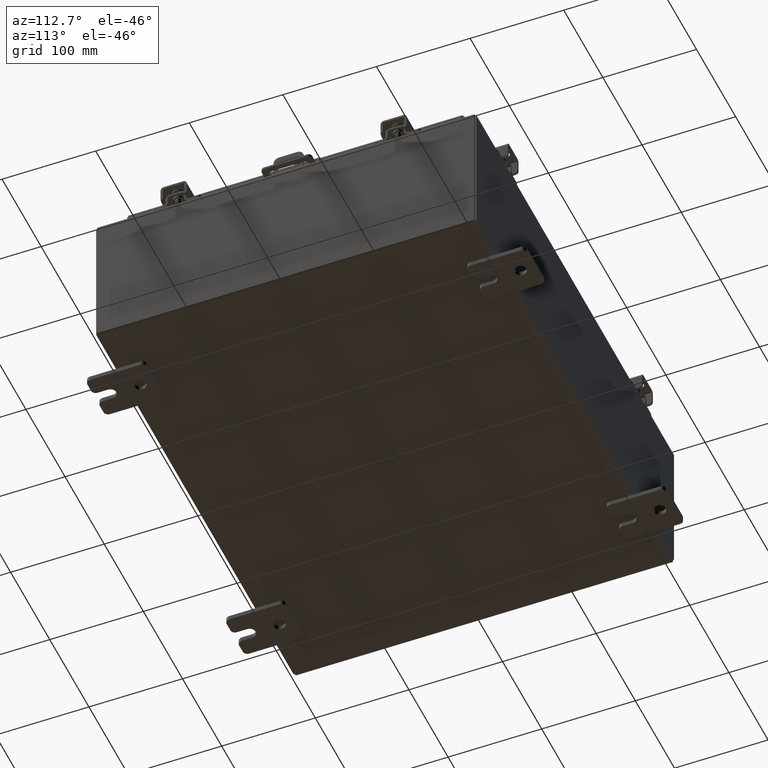
[diagram: clean part render]
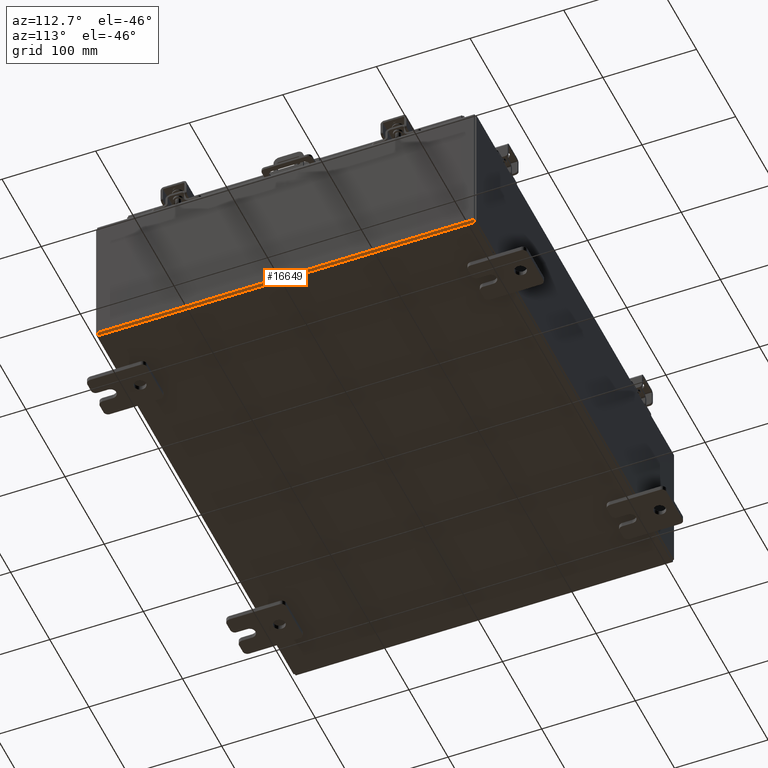
[diagram: same view with one face highlighted and labeled with its STEP entity id]
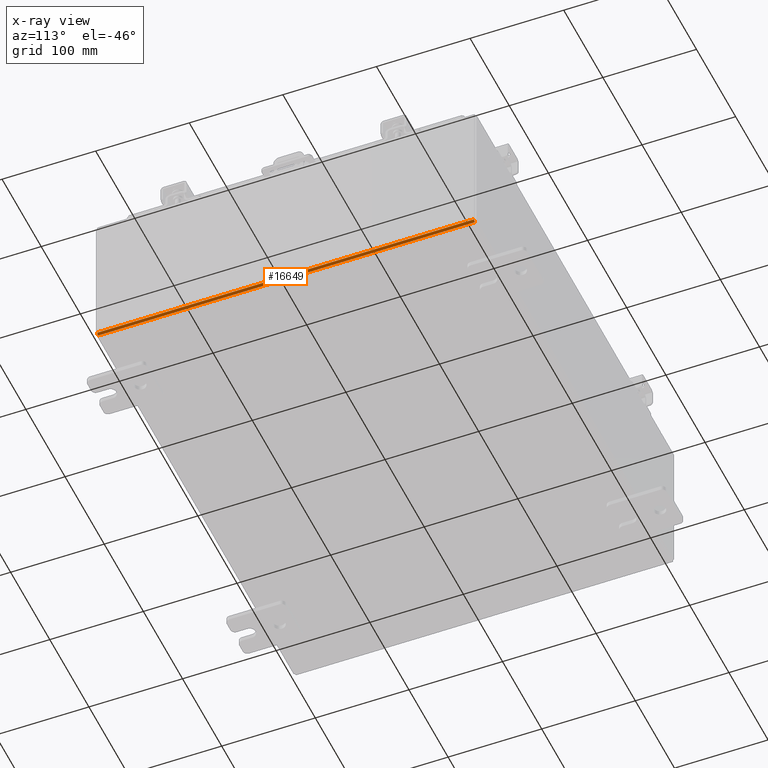
[diagram: x-ray of the same camera — body ghosted, the highlighted face saturated]
A machine part, auxiliary view. The second image highlights one B-rep face of the part: STEP entity #16649.
The next image is the same camera in x-ray: the body ghosted, the highlighted face saturated — about 0% of this face is hidden behind the body in this view.
In plain terms, the highlighted cylindrical surface (edge-blend (fillet) strip) has radius 2.2276 mm, axis along (0, 1, 0).
Its self-contained STEP definition (entity closure, byte-faithful):
#72 = EDGE_CURVE ( 'NONE', #6173, #16083, #7836, .T. ) ;
#321 = VECTOR ( 'NONE', #3567, 39.37007874015748100 ) ;
#1035 = LINE ( 'NONE', #3840, #321 ) ;
#1183 = FACE_OUTER_BOUND ( 'NONE', #15271, .T. ) ;
#3551 = CARTESIAN_POINT ( 'NONE',  ( 10.00000000000000000, -7.925300000000000000, 0.01299999999999985900 ) ) ;
#3567 = DIRECTION ( 'NONE',  ( -0.0000000000000000000, -1.000000000000000000, -0.0000000000000000000 ) ) ;
#3840 = CARTESIAN_POINT ( 'NONE',  ( 10.00000000000000000, -7.925300000000000000, 0.01299999999999986400 ) ) ;
#3893 = EDGE_CURVE ( 'NONE', #18187, #21002, #8009, .T. ) ;
#4420 = ORIENTED_EDGE ( 'NONE', *, *, #3893, .F. ) ;
#4553 = ORIENTED_EDGE ( 'NONE', *, *, #72, .F. ) ;
#4918 = DIRECTION ( 'NONE',  ( 1.000000000000000000, 0.0000000000000000000, -3.309679011708404900E-015 ) ) ;
#5137 = AXIS2_PLACEMENT_3D ( 'NONE', #8687, #26166, #20633 ) ;
#5310 = EDGE_CURVE ( 'NONE', #18187, #16083, #1035, .T. ) ;
#6173 = VERTEX_POINT ( 'NONE', #13592 ) ;
#7836 = CIRCLE ( 'NONE', #5137, 0.08770000000000009700 ) ;
#7947 = DIRECTION ( 'NONE',  ( 0.0000000000000000000, 1.000000000000000000, 0.0000000000000000000 ) ) ;
#8009 = CIRCLE ( 'NONE', #11431, 0.08770000000000009700 ) ;
#8651 = VECTOR ( 'NONE', #23348, 39.37007874015748100 ) ;
#8687 = CARTESIAN_POINT ( 'NONE',  ( 9.912300000000000100, -7.925300000000000000, 0.01300000000000015000 ) ) ;
#9651 = CARTESIAN_POINT ( 'NONE',  ( 9.912300000000000100, 7.925300000000000000, 0.01300000000000015000 ) ) ;
#10480 = EDGE_CURVE ( 'NONE', #21002, #6173, #14737, .T. ) ;
#11001 = ORIENTED_EDGE ( 'NONE', *, *, #10480, .F. ) ;
#11431 = AXIS2_PLACEMENT_3D ( 'NONE', #24057, #23976, #23943 ) ;
#13592 = CARTESIAN_POINT ( 'NONE',  ( 9.912300000000000100, -7.925300000000000000, -0.07470000000000000300 ) ) ;
#14737 = LINE ( 'NONE', #25618, #8651 ) ;
#15271 = EDGE_LOOP ( 'NONE', ( #11001, #4420, #18926, #4553 ) ) ;
#16083 = VERTEX_POINT ( 'NONE', #3551 ) ;
#16261 = CARTESIAN_POINT ( 'NONE',  ( 9.912300000000000100, 7.925300000000000000, -0.07469999999999994700 ) ) ;
#16649 = ADVANCED_FACE ( 'NONE', ( #1183 ), #25583, .T. ) ;
#18187 = VERTEX_POINT ( 'NONE', #18871 ) ;
#18535 = AXIS2_PLACEMENT_3D ( 'NONE', #9651, #7947, #4918 ) ;
#18871 = CARTESIAN_POINT ( 'NONE',  ( 10.00000000000000000, 7.925300000000000000, 0.01299999999999986400 ) ) ;
#18926 = ORIENTED_EDGE ( 'NONE', *, *, #5310, .T. ) ;
#20633 = DIRECTION ( 'NONE',  ( 0.0000000000000000000, 0.0000000000000000000, 1.000000000000000000 ) ) ;
#21002 = VERTEX_POINT ( 'NONE', #16261 ) ;
#23348 = DIRECTION ( 'NONE',  ( -0.0000000000000000000, -1.000000000000000000, -0.0000000000000000000 ) ) ;
#23943 = DIRECTION ( 'NONE',  ( 0.0000000000000000000, 0.0000000000000000000, 1.000000000000000000 ) ) ;
#23976 = DIRECTION ( 'NONE',  ( 0.0000000000000000000, 1.000000000000000000, 0.0000000000000000000 ) ) ;
#24057 = CARTESIAN_POINT ( 'NONE',  ( 9.912300000000000100, 7.925300000000000000, 0.01300000000000015000 ) ) ;
#25583 = CYLINDRICAL_SURFACE ( 'NONE', #18535, 0.08770000000000026400 ) ;
#25618 = CARTESIAN_POINT ( 'NONE',  ( 9.912300000000000100, 7.925300000000000000, -0.07469999999999994700 ) ) ;
#26166 = DIRECTION ( 'NONE',  ( -0.0000000000000000000, -1.000000000000000000, -0.0000000000000000000 ) ) ;